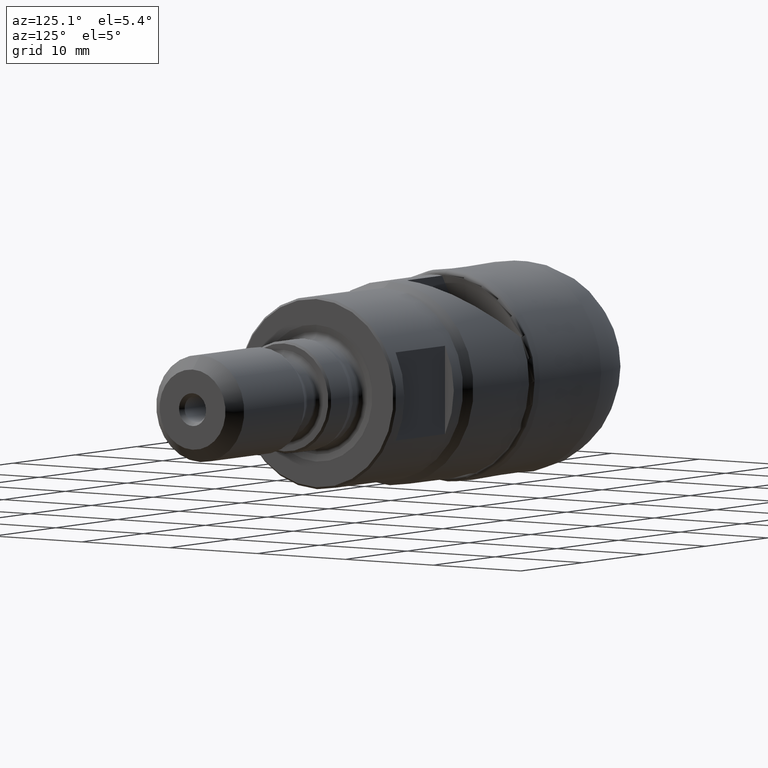
[diagram: clean part render]
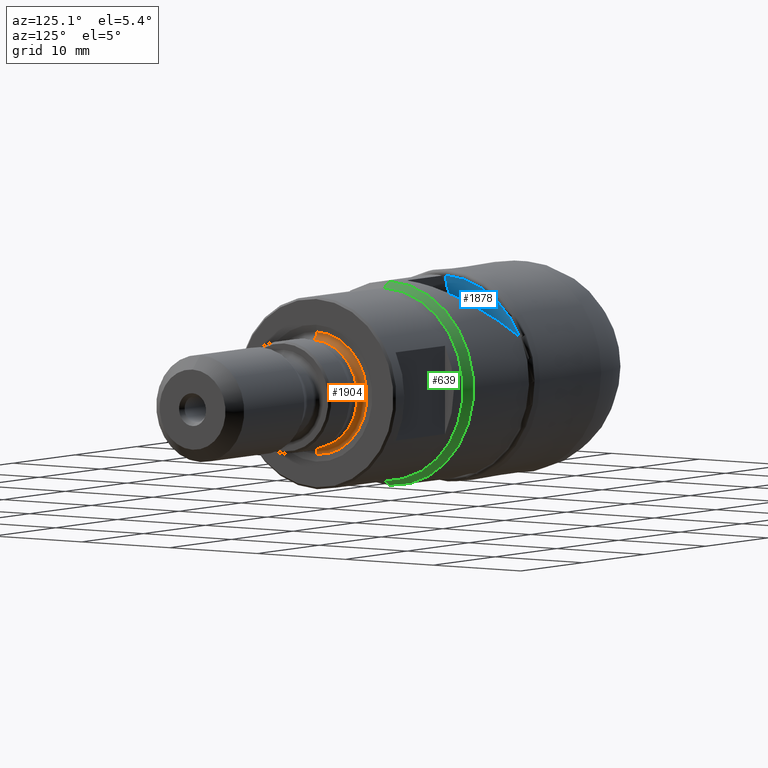
[diagram: same view with three faces highlighted in distinct colors, each labeled with its STEP entity id]
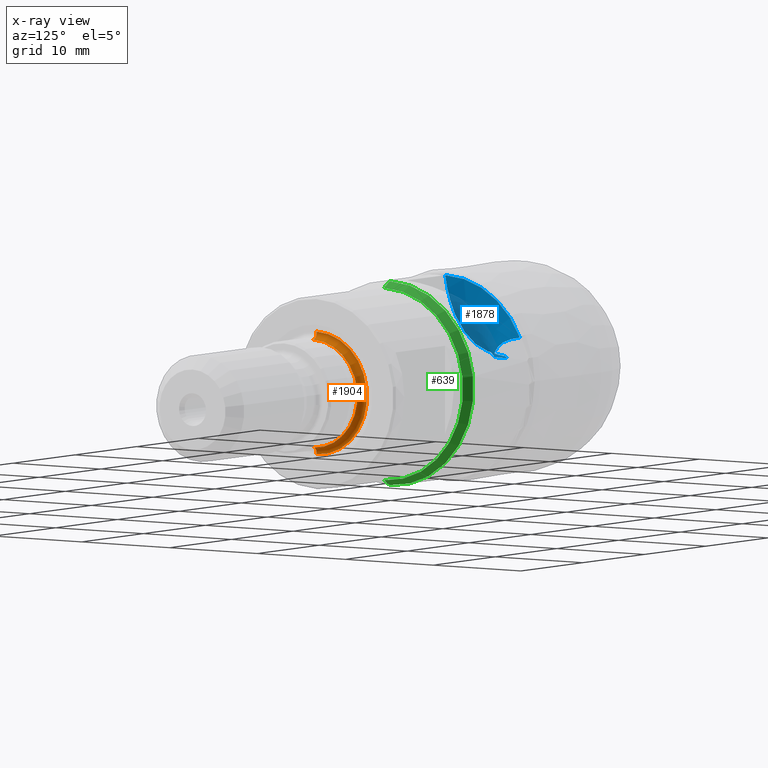
[diagram: x-ray of the same camera — body ghosted, the three highlighted faces saturated]
A machine part, auxiliary view with three faces highlighted in distinct colors.
The next image is the same camera in x-ray (body ghosted, the three faces saturated) — at least one of them is partly hidden behind the body in this view.
Their STEP definitions:

[orange] entity #1904 — the highlighted toroidal blend (fillet) surface has major radius 5.65 mm and minor (blend) radius 0.6 mm.
#62 = CARTESIAN_POINT ( 'NONE',  ( 41.94308558875506066, 0.0000000000000000000, 0.0000000000000000000 ) ) ;
#98 = ORIENTED_EDGE ( 'NONE', *, *, #758, .F. ) ;
#210 = AXIS2_PLACEMENT_3D ( 'NONE', #3769, #1340, #4446 ) ;
#387 = DIRECTION ( 'NONE',  ( 0.0000000000000000000, 0.0000000000000000000, -1.000000000000000000 ) ) ;
#400 = EDGE_CURVE ( 'NONE', #462, #4566, #3942, .T. ) ;
#462 = VERTEX_POINT ( 'NONE', #1164 ) ;
#572 = CIRCLE ( 'NONE', #210, 5.050000000000000711 ) ;
#724 = VERTEX_POINT ( 'NONE', #2466 ) ;
#750 = DIRECTION ( 'NONE',  ( 0.0000000000000000000, 0.0000000000000000000, 1.000000000000000000 ) ) ;
#758 = EDGE_CURVE ( 'NONE', #724, #462, #3747, .T. ) ;
#876 = EDGE_LOOP ( 'NONE', ( #3601, #98, #3468, #4037 ) ) ;
#1137 = AXIS2_PLACEMENT_3D ( 'NONE', #62, #2838, #3621 ) ;
#1164 = CARTESIAN_POINT ( 'NONE',  ( 41.94308558875506066, 0.0000000000000000000, -5.733503860576043998 ) ) ;
#1340 = DIRECTION ( 'NONE',  ( -1.000000000000000000, 0.0000000000000000000, 0.0000000000000000000 ) ) ;
#1778 = CARTESIAN_POINT ( 'NONE',  ( 42.53724643000001038, 6.919254415182546323E-16, -5.650000000000000355 ) ) ;
#1904 = ADVANCED_FACE ( 'NONE', ( #4225 ), #2025, .F. ) ;
#1909 = VERTEX_POINT ( 'NONE', #3930 ) ;
#1912 = CARTESIAN_POINT ( 'NONE',  ( 42.53724643000001038, 6.602991743223788871E-16, -5.050000000000000711 ) ) ;
#2025 = TOROIDAL_SURFACE ( 'NONE', #2230, 5.650000000000000355, 0.6000000000000050848 ) ;
#2172 = DIRECTION ( 'NONE',  ( 0.0000000000000000000, -1.000000000000000000, 0.0000000000000000000 ) ) ;
#2228 = CIRCLE ( 'NONE', #4321, 0.6000000000000050848 ) ;
#2230 = AXIS2_PLACEMENT_3D ( 'NONE', #4595, #4277, #750 ) ;
#2466 = CARTESIAN_POINT ( 'NONE',  ( 41.94308558875506066, 7.431767214657731568E-16, 5.733503860576043998 ) ) ;
#2838 = DIRECTION ( 'NONE',  ( -1.000000000000000000, 0.0000000000000000000, 0.0000000000000000000 ) ) ;
#2885 = AXIS2_PLACEMENT_3D ( 'NONE', #1778, #3644, #3258 ) ;
#2920 = CARTESIAN_POINT ( 'NONE',  ( 42.53724643000001038, 0.0000000000000000000, 5.650000000000000355 ) ) ;
#3258 = DIRECTION ( 'NONE',  ( 0.0000000000000000000, -1.224646799147352221E-16, 1.000000000000000000 ) ) ;
#3429 = EDGE_CURVE ( 'NONE', #1909, #4566, #572, .T. ) ;
#3468 = ORIENTED_EDGE ( 'NONE', *, *, #4110, .T. ) ;
#3601 = ORIENTED_EDGE ( 'NONE', *, *, #400, .F. ) ;
#3621 = DIRECTION ( 'NONE',  ( 0.0000000000000000000, 0.0000000000000000000, 1.000000000000000000 ) ) ;
#3644 = DIRECTION ( 'NONE',  ( 0.0000000000000000000, 1.000000000000000000, 1.224646799147353207E-16 ) ) ;
#3747 = CIRCLE ( 'NONE', #1137, 5.733503860576043998 ) ;
#3769 = CARTESIAN_POINT ( 'NONE',  ( 42.53724643000001038, 0.0000000000000000000, 5.421010862427522170E-17 ) ) ;
#3930 = CARTESIAN_POINT ( 'NONE',  ( 42.53724643000001038, 0.0000000000000000000, 5.050000000000000711 ) ) ;
#3942 = CIRCLE ( 'NONE', #2885, 0.6000000000000050848 ) ;
#4037 = ORIENTED_EDGE ( 'NONE', *, *, #3429, .T. ) ;
#4110 = EDGE_CURVE ( 'NONE', #724, #1909, #2228, .T. ) ;
#4225 = FACE_OUTER_BOUND ( 'NONE', #876, .T. ) ;
#4277 = DIRECTION ( 'NONE',  ( -1.000000000000000000, 0.0000000000000000000, 0.0000000000000000000 ) ) ;
#4321 = AXIS2_PLACEMENT_3D ( 'NONE', #2920, #2172, #387 ) ;
#4446 = DIRECTION ( 'NONE',  ( 0.0000000000000000000, 0.0000000000000000000, 1.000000000000000000 ) ) ;
#4566 = VERTEX_POINT ( 'NONE', #1912 ) ;
#4595 = CARTESIAN_POINT ( 'NONE',  ( 42.53724643000001038, 0.0000000000000000000, 5.421010862427522170E-17 ) ) ;

[blue] entity #1878 — the highlighted toroidal blend (fillet) surface has major radius 11.2899 mm and minor (blend) radius 9.9796 mm.
#111 = ORIENTED_EDGE ( 'NONE', *, *, #1182, .F. ) ;
#114 = CARTESIAN_POINT ( 'NONE',  ( 19.96660430898708327, 5.413681558173808028, 3.152423717876322140 ) ) ;
#115 = CARTESIAN_POINT ( 'NONE',  ( 13.07561550490261126, 0.9698581177001185383, 1.092052337430603703 ) ) ;
#155 = CARTESIAN_POINT ( 'NONE',  ( 17.50073021130629058, 2.960968846663759813, 1.766205604202873092 ) ) ;
#162 = CARTESIAN_POINT ( 'NONE',  ( 19.65476743409239546, -3.152897486998717228E-15, 5.805797848900740021 ) ) ;
#164 = CARTESIAN_POINT ( 'NONE',  ( 20.97741557824583225, 7.838842254802122156, 3.919671230942345375 ) ) ;
#169 = EDGE_CURVE ( 'NONE', #3224, #3444, #3466, .T. ) ;
#183 = CARTESIAN_POINT ( 'NONE',  ( 19.65476743409239546, -3.152897486998717228E-15, 5.805797848900740021 ) ) ;
#262 = CARTESIAN_POINT ( 'NONE',  ( 19.42691125749589531, -2.062658384871383890E-15, 5.474141063067956559 ) ) ;
#277 = ORIENTED_EDGE ( 'NONE', *, *, #542, .T. ) ;
#303 = B_SPLINE_CURVE_WITH_KNOTS ( 'NONE', 3,
 ( #1586, #3600, #3015, #1825, #155, #3703, #1141, #1494 ),
 .UNSPECIFIED., .F., .F.,
 ( 4, 2, 2, 4 ),
 ( 3.520864042674768086E-07, 0.002294856825951278358, 0.003442109195724783657, 0.004589361565498289823 ),
 .UNSPECIFIED. ) ;
#306 = VERTEX_POINT ( 'NONE', #611 ) ;
#338 = EDGE_CURVE ( 'NONE', #4212, #1939, #4034, .T. ) ;
#354 = CARTESIAN_POINT ( 'NONE',  ( 14.19757062788032087, 5.084167845264021029E-16, 1.735050814641037942 ) ) ;
#374 = EDGE_CURVE ( 'NONE', #2078, #444, #1594, .T. ) ;
#403 = DIRECTION ( 'NONE',  ( -1.000000000000000000, -0.0000000000000000000, -0.0000000000000000000 ) ) ;
#444 = VERTEX_POINT ( 'NONE', #2562 ) ;
#459 = CARTESIAN_POINT ( 'NONE',  ( 21.05534729143818495, 8.166890194642355993, 3.978824620852267735 ) ) ;
#540 = ORIENTED_EDGE ( 'NONE', *, *, #1216, .F. ) ;
#542 = EDGE_CURVE ( 'NONE', #2299, #980, #2632, .T. ) ;
#611 = CARTESIAN_POINT ( 'NONE',  ( 16.22521480399826288, 2.131570230130911181, 1.489939259239655200 ) ) ;
#688 = EDGE_CURVE ( 'NONE', #2078, #980, #4014, .T. ) ;
#689 = CARTESIAN_POINT ( 'NONE',  ( 13.85445470285899816, 0.2984828265234339972, 1.611091296120749083 ) ) ;
#727 = CARTESIAN_POINT ( 'NONE',  ( 21.11725314103922457, 0.0000000000000000000, 9.406049446992103213 ) ) ;
#771 = CARTESIAN_POINT ( 'NONE',  ( 11.31710320045365492, 0.0000000000000000000, 11.28987368065015318 ) ) ;
#773 = CARTESIAN_POINT ( 'NONE',  ( 13.74745318078386802, 1.090906691617483437, 1.176925173441360606 ) ) ;
#789 = DIRECTION ( 'NONE',  ( 0.0000000000000000000, 0.0000000000000000000, 1.000000000000000000 ) ) ;
#815 = DIRECTION ( 'NONE',  ( 0.0000000000000000000, 0.0000000000000000000, 1.000000000000000000 ) ) ;
#819 = DIRECTION ( 'NONE',  ( -1.000000000000000000, -0.0000000000000000000, -0.0000000000000000000 ) ) ;
#831 = ORIENTED_EDGE ( 'NONE', *, *, #338, .F. ) ;
#887 = AXIS2_PLACEMENT_3D ( 'NONE', #2936, #403, #815 ) ;
#925 = CARTESIAN_POINT ( 'NONE',  ( 21.11725314103922457, 8.500975832541801225, 4.025813718219046322 ) ) ;
#980 = VERTEX_POINT ( 'NONE', #262 ) ;
#1026 = AXIS2_PLACEMENT_3D ( 'NONE', #1219, #819, #789 ) ;
#1032 = CIRCLE ( 'NONE', #887, 9.406049446992103213 ) ;
#1039 = VERTEX_POINT ( 'NONE', #2469 ) ;
#1108 = DIRECTION ( 'NONE',  ( 0.0000000000000000000, 0.0000000000000000000, -1.000000000000000000 ) ) ;
#1117 = CARTESIAN_POINT ( 'NONE',  ( 13.81517592286429164, 0.4322935730501476503, 1.569989780415347758 ) ) ;
#1125 = TOROIDAL_SURFACE ( 'NONE', #3205, 11.28987368065015318, 9.979565752139551549 ) ;
#1140 = DIRECTION ( 'NONE',  ( 0.0000000000000000000, -1.000000000000000000, 0.0000000000000000000 ) ) ;
#1141 = CARTESIAN_POINT ( 'NONE',  ( 16.55570947105050195, 2.330150979369645103, 1.531690445107203091 ) ) ;
#1168 = CARTESIAN_POINT ( 'NONE',  ( 15.64018279047524373, 1.780048383772686149, 1.416032528600217333 ) ) ;
#1182 = EDGE_CURVE ( 'NONE', #1939, #444, #3881, .T. ) ;
#1194 = CARTESIAN_POINT ( 'NONE',  ( 14.19757062788032087, 5.084167845264021029E-16, 1.735050814641037942 ) ) ;
#1216 = EDGE_CURVE ( 'NONE', #2299, #4369, #2461, .T. ) ;
#1219 = CARTESIAN_POINT ( 'NONE',  ( 12.39196985095560066, 0.0000000000000000000, 0.0000000000000000000 ) ) ;
#1256 = CARTESIAN_POINT ( 'NONE',  ( 20.78755522415371004, 7.195554619948432595, 3.775559378475722649 ) ) ;
#1364 = ORIENTED_EDGE ( 'NONE', *, *, #2766, .F. ) ;
#1384 = DIRECTION ( 'NONE',  ( 0.0000000000000000000, 0.0000000000000000000, 1.000000000000000000 ) ) ;
#1434 = CIRCLE ( 'NONE', #1026, 1.368361987116985645 ) ;
#1439 = FACE_OUTER_BOUND ( 'NONE', #2360, .T. ) ;
#1454 = CARTESIAN_POINT ( 'NONE',  ( 13.91611050964405649, 0.2135483936816728878, 1.641819229374375411 ) ) ;
#1494 = CARTESIAN_POINT ( 'NONE',  ( 16.22521480399826288, 2.131570230130911181, 1.489939259239655200 ) ) ;
#1521 = CARTESIAN_POINT ( 'NONE',  ( 13.96933967934569765, 0.1661367794009440124, 1.661348511312599197 ) ) ;
#1545 = CARTESIAN_POINT ( 'NONE',  ( 12.39196985095560066, 0.9279043931673953693, 1.005687806890093627 ) ) ;
#1564 = DIRECTION ( 'NONE',  ( 0.0000000000000000000, -1.000000000000000000, 0.0000000000000000000 ) ) ;
#1586 = CARTESIAN_POINT ( 'NONE',  ( 19.58007597308912651, 4.924056787976951455, 2.859032742264491667 ) ) ;
#1594 = B_SPLINE_CURVE_WITH_KNOTS ( 'NONE', 3,
 ( #354, #1877, #3973, #1521, #1454, #689, #3992, #3624, #1117, #3898, #2119, #2541 ),
 .UNSPECIFIED., .F., .F.,
 ( 4, 2, 2, 2, 2, 4 ),
 ( 0.003195555261201599075, 0.003414490658476695105, 0.003633426055751791135, 0.003742893754389337631, 0.003852361453026883695, 0.004071296850301976689 ),
 .UNSPECIFIED. ) ;
#1631 = CARTESIAN_POINT ( 'NONE',  ( 13.93057110995101056, 0.6509774400000000183, 1.525505696513751008 ) ) ;
#1655 = AXIS2_PLACEMENT_3D ( 'NONE', #771, #1564, #3626 ) ;
#1746 = CARTESIAN_POINT ( 'NONE',  ( 12.39196985095530046, 0.6510111265813353087, 1.203577600678060300 ) ) ;
#1785 = DIRECTION ( 'NONE',  ( -1.000000000000000000, -0.0000000000000000000, -0.0000000000000000000 ) ) ;
#1825 = CARTESIAN_POINT ( 'NONE',  ( 17.80008329337124806, 3.184106240809993604, 1.871177191601855583 ) ) ;
#1830 = CARTESIAN_POINT ( 'NONE',  ( 13.10215631124822266, 0.6509774400000000183, 1.309298555263902486 ) ) ;
#1877 = CARTESIAN_POINT ( 'NONE',  ( 14.13818495143214804, 0.03850982395287299437, 1.717147970280444413 ) ) ;
#1878 = ADVANCED_FACE ( 'NONE', ( #1439 ), #1125, .T. ) ;
#1900 = CARTESIAN_POINT ( 'NONE',  ( 20.67459867552374320, 6.877988561055277117, 3.689820691485798054 ) ) ;
#1901 = CARTESIAN_POINT ( 'NONE',  ( 15.03117038062644362, 1.492195660666162382, 1.339096369398052211 ) ) ;
#1921 = CARTESIAN_POINT ( 'NONE',  ( 19.42691125749589531, -2.062658384871383890E-15, 5.474141063067956559 ) ) ;
#1939 = VERTEX_POINT ( 'NONE', #3578 ) ;
#2000 = AXIS2_PLACEMENT_3D ( 'NONE', #3894, #1140, #1108 ) ;
#2006 = CARTESIAN_POINT ( 'NONE',  ( 12.67707182341128913, 0.6509774399999992411, 1.243294156026041097 ) ) ;
#2012 = EDGE_CURVE ( 'NONE', #4212, #1039, #1434, .T. ) ;
#2061 = EDGE_CURVE ( 'NONE', #306, #1039, #2640, .T. ) ;
#2078 = VERTEX_POINT ( 'NONE', #1194 ) ;
#2119 = CARTESIAN_POINT ( 'NONE',  ( 13.88113724984446584, 0.5977421568867238300, 1.533638471459354280 ) ) ;
#2167 = CARTESIAN_POINT ( 'NONE',  ( 13.51974826831184195, 0.6509774400000000183, 1.404302381836380231 ) ) ;
#2286 = CARTESIAN_POINT ( 'NONE',  ( 12.73429073865083261, 0.9357240936435691214, 1.048932991861752706 ) ) ;
#2299 = VERTEX_POINT ( 'NONE', #183 ) ;
#2360 = EDGE_LOOP ( 'NONE', ( #4430, #2999, #111, #831, #2924, #4003, #1364, #2431, #4362, #540, #277 ) ) ;
#2367 = EDGE_CURVE ( 'NONE', #4369, #3224, #1032, .T. ) ;
#2431 = ORIENTED_EDGE ( 'NONE', *, *, #169, .F. ) ;
#2461 = CIRCLE ( 'NONE', #1655, 9.979565752139551549 ) ;
#2469 = CARTESIAN_POINT ( 'NONE',  ( 12.39196985095560066, 0.9279043931673953693, 1.005687806890093627 ) ) ;
#2541 = CARTESIAN_POINT ( 'NONE',  ( 13.93057110995101056, 0.6509774400000000183, 1.525505696513751008 ) ) ;
#2562 = CARTESIAN_POINT ( 'NONE',  ( 13.93057110995101056, 0.6509774400000000183, 1.525505696513751008 ) ) ;
#2632 = B_SPLINE_CURVE_WITH_KNOTS ( 'NONE', 3,
 ( #162, #2955, #3005, #1921 ),
 .UNSPECIFIED., .F., .F.,
 ( 4, 4 ),
 ( 0.004572982181124621119, 0.004974678959118258512 ),
 .UNSPECIFIED. ) ;
#2640 = B_SPLINE_CURVE_WITH_KNOTS ( 'NONE', 3,
 ( #2890, #1168, #1901, #3363, #773, #115, #2286, #1545 ),
 .UNSPECIFIED., .F., .F.,
 ( 4, 2, 2, 4 ),
 ( 2.311179299849727913E-07, 0.002028391925220387332, 0.003042472328865591068, 0.004056552732510794804 ),
 .UNSPECIFIED. ) ;
#2711 = CARTESIAN_POINT ( 'NONE',  ( 19.58007597308912651, 4.924056787976951455, 2.859032742264491667 ) ) ;
#2766 = EDGE_CURVE ( 'NONE', #3444, #306, #303, .T. ) ;
#2811 = CARTESIAN_POINT ( 'NONE',  ( 12.48722338918856067, 0.6510166623482959158, 1.215306949660361457 ) ) ;
#2890 = CARTESIAN_POINT ( 'NONE',  ( 16.22521480399826288, 2.131570230130911181, 1.489939259239655200 ) ) ;
#2924 = ORIENTED_EDGE ( 'NONE', *, *, #2012, .T. ) ;
#2936 = CARTESIAN_POINT ( 'NONE',  ( 21.11725314103922457, 0.0000000000000000000, 0.0000000000000000000 ) ) ;
#2955 = CARTESIAN_POINT ( 'NONE',  ( 19.58094209959148202, 0.005808212746977019399, 5.693558180834677351 ) ) ;
#2999 = ORIENTED_EDGE ( 'NONE', *, *, #374, .T. ) ;
#3005 = CARTESIAN_POINT ( 'NONE',  ( 19.50498414231894273, 0.005792103840944611524, 5.583010598861319451 ) ) ;
#3015 = CARTESIAN_POINT ( 'NONE',  ( 18.64534987292683255, 3.877155283048427048, 2.229791807718576102 ) ) ;
#3067 = CARTESIAN_POINT ( 'NONE',  ( 12.58225365738494084, 0.6509774399991750116, 1.228571397929621556 ) ) ;
#3205 = AXIS2_PLACEMENT_3D ( 'NONE', #3553, #1785, #1384 ) ;
#3224 = VERTEX_POINT ( 'NONE', #4581 ) ;
#3309 = CARTESIAN_POINT ( 'NONE',  ( 20.28668676611410149, 5.965101370470968334, 3.395379526418957017 ) ) ;
#3363 = CARTESIAN_POINT ( 'NONE',  ( 14.07400829984912605, 1.176292109437833355, 1.218178678661269165 ) ) ;
#3444 = VERTEX_POINT ( 'NONE', #2711 ) ;
#3466 = B_SPLINE_CURVE_WITH_KNOTS ( 'NONE', 3,
 ( #925, #459, #164, #1256, #1900, #3309, #114, #4388 ),
 .UNSPECIFIED., .F., .F.,
 ( 4, 2, 2, 4 ),
 ( 0.0007844389824342663580, 0.001811419174357700897, 0.002838399366281132291, 0.004892359750127992478 ),
 .UNSPECIFIED. ) ;
#3553 = CARTESIAN_POINT ( 'NONE',  ( 11.31710320045365492, 0.0000000000000000000, 0.0000000000000000000 ) ) ;
#3578 = CARTESIAN_POINT ( 'NONE',  ( 12.67707182341128913, 0.6509774399999992411, 1.243294156026041097 ) ) ;
#3600 = CARTESIAN_POINT ( 'NONE',  ( 19.14560707597074440, 4.373704552052493533, 2.529252900116949476 ) ) ;
#3624 = CARTESIAN_POINT ( 'NONE',  ( 13.81711482371615851, 0.3965879190900264972, 1.579878062328887278 ) ) ;
#3626 = DIRECTION ( 'NONE',  ( 0.0000000000000000000, 0.0000000000000000000, -1.000000000000000000 ) ) ;
#3703 = CARTESIAN_POINT ( 'NONE',  ( 16.87806600790683831, 2.533598236927553593, 1.596418395694495729 ) ) ;
#3881 = B_SPLINE_CURVE_WITH_KNOTS ( 'NONE', 3,
 ( #4055, #1830, #2167, #1631 ),
 .UNSPECIFIED., .F., .F.,
 ( 4, 4 ),
 ( 0.0002861679677479240461, 0.001570409932128621509 ),
 .UNSPECIFIED. ) ;
#3894 = CARTESIAN_POINT ( 'NONE',  ( 11.31710320045365492, 0.0000000000000000000, 11.28987368065015318 ) ) ;
#3898 = CARTESIAN_POINT ( 'NONE',  ( 13.83643915955295789, 0.5373766921558797982, 1.544295224474874662 ) ) ;
#3973 = CARTESIAN_POINT ( 'NONE',  ( 14.07975194447808143, 0.07864590669602897210, 1.698926257969494813 ) ) ;
#3992 = CARTESIAN_POINT ( 'NONE',  ( 13.83708591761493700, 0.3295365325514051924, 1.600510159225990936 ) ) ;
#4003 = ORIENTED_EDGE ( 'NONE', *, *, #2061, .F. ) ;
#4014 = CIRCLE ( 'NONE', #2000, 9.979565752139551549 ) ;
#4034 = B_SPLINE_CURVE_WITH_KNOTS ( 'NONE', 3,
 ( #4569, #2811, #3067, #2006 ),
 .UNSPECIFIED., .F., .F.,
 ( 4, 4 ),
 ( 2.014619048210771348E-07, 0.0002880513207803172366 ),
 .UNSPECIFIED. ) ;
#4055 = CARTESIAN_POINT ( 'NONE',  ( 12.67707182341128913, 0.6509774399999992411, 1.243294156026041097 ) ) ;
#4212 = VERTEX_POINT ( 'NONE', #1746 ) ;
#4362 = ORIENTED_EDGE ( 'NONE', *, *, #2367, .F. ) ;
#4369 = VERTEX_POINT ( 'NONE', #727 ) ;
#4388 = CARTESIAN_POINT ( 'NONE',  ( 19.58007597308912651, 4.924056787976951455, 2.859032742264491667 ) ) ;
#4430 = ORIENTED_EDGE ( 'NONE', *, *, #688, .F. ) ;
#4569 = CARTESIAN_POINT ( 'NONE',  ( 12.39196985095530046, 0.6510111265813353087, 1.203577600678060300 ) ) ;
#4581 = CARTESIAN_POINT ( 'NONE',  ( 21.11725314103922457, 8.500975832541801225, 4.025813718219046322 ) ) ;

[green] entity #639 — the highlighted conical surface has half-angle 30 deg.
#28 = CARTESIAN_POINT ( 'NONE',  ( 31.03724643000001393, 0.0000000000000000000, 9.000000000000000000 ) ) ;
#165 = CARTESIAN_POINT ( 'NONE',  ( 30.10861458749761965, 0.0000000000000000000, 5.421010862427522170E-17 ) ) ;
#300 = VERTEX_POINT ( 'NONE', #1379 ) ;
#329 = DIRECTION ( 'NONE',  ( -1.000000000000000000, 0.0000000000000000000, 0.0000000000000000000 ) ) ;
#348 = DIRECTION ( 'NONE',  ( 0.0000000000000000000, 0.0000000000000000000, 1.000000000000000000 ) ) ;
#419 = AXIS2_PLACEMENT_3D ( 'NONE', #2205, #329, #348 ) ;
#528 = DIRECTION ( 'NONE',  ( 0.0000000000000000000, 0.0000000000000000000, 1.000000000000000000 ) ) ;
#620 = CARTESIAN_POINT ( 'NONE',  ( 31.03724643000001393, 0.0000000000000000000, 0.0000000000000000000 ) ) ;
#639 = ADVANCED_FACE ( 'NONE', ( #2506 ), #4457, .T. ) ;
#1048 = VERTEX_POINT ( 'NONE', #2123 ) ;
#1091 = VERTEX_POINT ( 'NONE', #28 ) ;
#1115 = VECTOR ( 'NONE', #4372, 1000.000000000000000 ) ;
#1131 = LINE ( 'NONE', #3241, #1115 ) ;
#1169 = ORIENTED_EDGE ( 'NONE', *, *, #3715, .F. ) ;
#1379 = CARTESIAN_POINT ( 'NONE',  ( 30.10861458749761965, 1.167841048435918451E-15, -9.536145844246805225 ) ) ;
#1641 = CIRCLE ( 'NONE', #4238, 9.536145844246805225 ) ;
#1717 = DIRECTION ( 'NONE',  ( -1.000000000000000000, 0.0000000000000000000, 0.0000000000000000000 ) ) ;
#1769 = ORIENTED_EDGE ( 'NONE', *, *, #2207, .F. ) ;
#1838 = ORIENTED_EDGE ( 'NONE', *, *, #2832, .T. ) ;
#2046 = VERTEX_POINT ( 'NONE', #2635 ) ;
#2123 = CARTESIAN_POINT ( 'NONE',  ( 30.10861458749761965, 0.0000000000000000000, 9.536145844246805225 ) ) ;
#2205 = CARTESIAN_POINT ( 'NONE',  ( 31.03724643000001393, 0.0000000000000000000, 0.0000000000000000000 ) ) ;
#2207 = EDGE_CURVE ( 'NONE', #1048, #300, #1641, .T. ) ;
#2252 = ORIENTED_EDGE ( 'NONE', *, *, #3955, .T. ) ;
#2506 = FACE_OUTER_BOUND ( 'NONE', #2732, .T. ) ;
#2623 = DIRECTION ( 'NONE',  ( -0.8660254037844422603, 6.123233995736689615E-17, -0.4999999999999937828 ) ) ;
#2635 = CARTESIAN_POINT ( 'NONE',  ( 31.03724643000001393, 1.135011583834268280E-15, -9.000000000000000000 ) ) ;
#2732 = EDGE_LOOP ( 'NONE', ( #2252, #1838, #1769, #1169 ) ) ;
#2832 = EDGE_CURVE ( 'NONE', #2046, #300, #3725, .T. ) ;
#2861 = CARTESIAN_POINT ( 'NONE',  ( 31.03724643000001393, 1.102182119232617714E-15, -9.000000000000000000 ) ) ;
#3109 = CIRCLE ( 'NONE', #3793, 9.000000000000000000 ) ;
#3241 = CARTESIAN_POINT ( 'NONE',  ( 31.03724643000001393, 0.0000000000000000000, 9.000000000000000000 ) ) ;
#3715 = EDGE_CURVE ( 'NONE', #1091, #1048, #1131, .T. ) ;
#3725 = LINE ( 'NONE', #2861, #4252 ) ;
#3793 = AXIS2_PLACEMENT_3D ( 'NONE', #620, #1717, #4510 ) ;
#3955 = EDGE_CURVE ( 'NONE', #1091, #2046, #3109, .T. ) ;
#4238 = AXIS2_PLACEMENT_3D ( 'NONE', #165, #4456, #528 ) ;
#4252 = VECTOR ( 'NONE', #2623, 1000.000000000000000 ) ;
#4372 = DIRECTION ( 'NONE',  ( -0.8660254037844422603, 0.0000000000000000000, 0.4999999999999937828 ) ) ;
#4456 = DIRECTION ( 'NONE',  ( -1.000000000000000000, 0.0000000000000000000, 0.0000000000000000000 ) ) ;
#4457 = CONICAL_SURFACE ( 'NONE', #419, 9.000000000000000000, 0.5235987755982917102 ) ;
#4510 = DIRECTION ( 'NONE',  ( 0.0000000000000000000, 0.0000000000000000000, 1.000000000000000000 ) ) ;